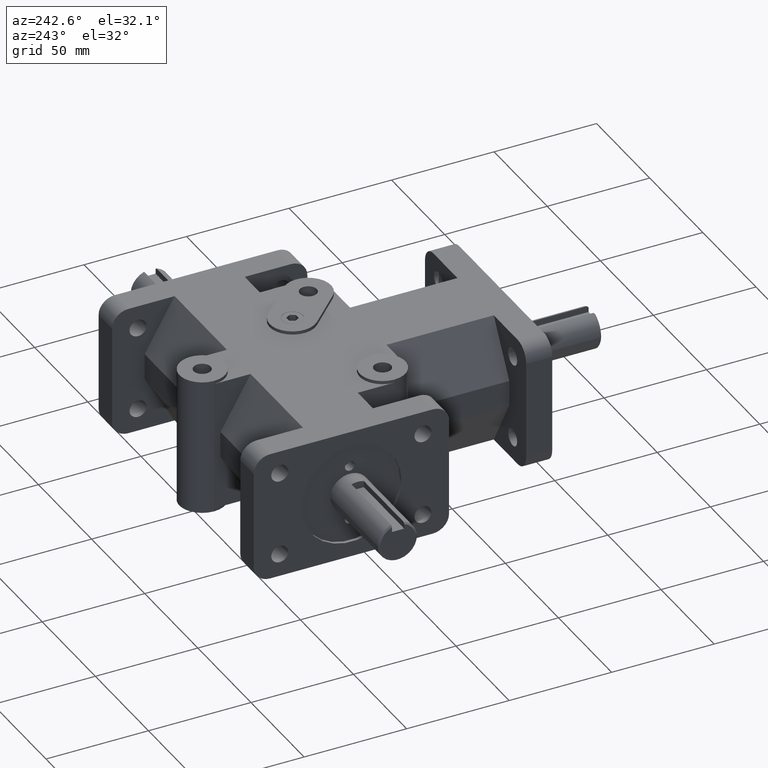
[diagram: clean part render]
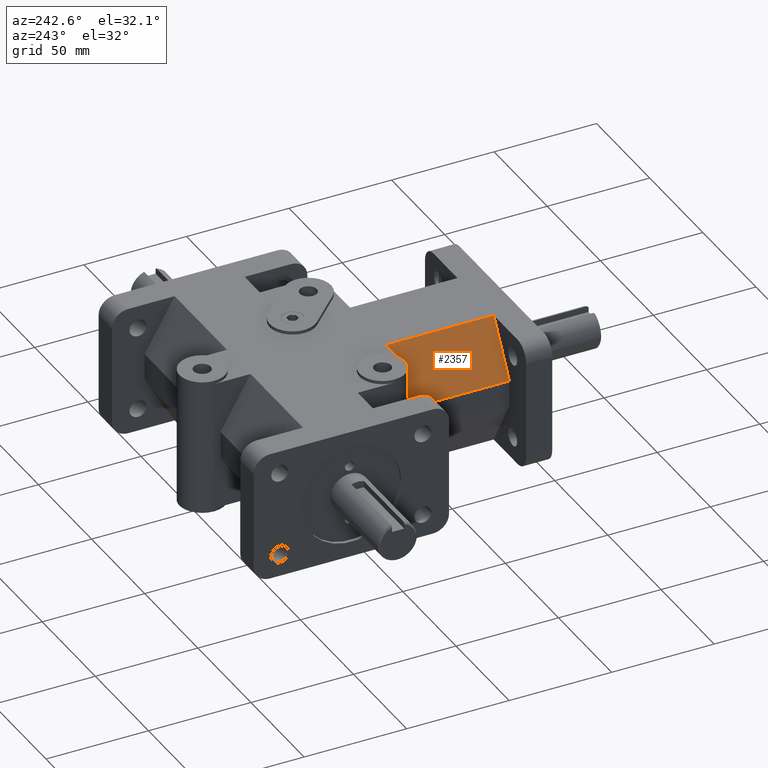
[diagram: same view with one face highlighted and labeled with its STEP entity id]
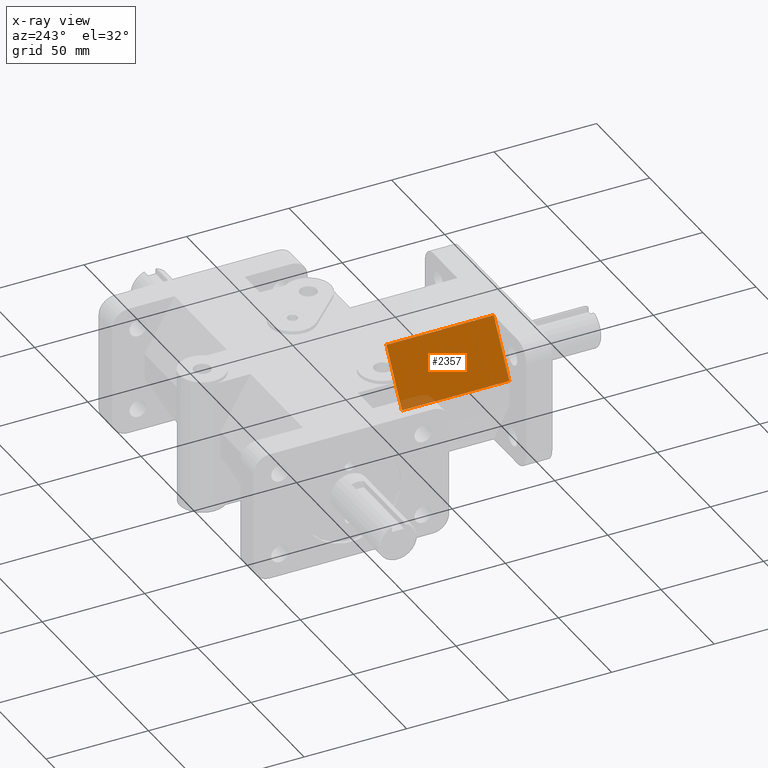
[diagram: x-ray of the same camera — body ghosted, the highlighted face saturated]
A machine part, auxiliary view. The second image highlights one B-rep face of the part: STEP entity #2357.
The next image is the same camera in x-ray: the body ghosted, the highlighted face saturated — about 4% of this face is hidden behind the body in this view.
In plain terms, the highlighted planar face has unit normal (-0.866, 0, 0.5).
Its self-contained STEP definition (entity closure, byte-faithful):
#111=PLANE('',#2606);
#238=FACE_OUTER_BOUND('',#395,.T.);
#395=EDGE_LOOP('',(#2019,#2020,#2021,#2022));
#566=LINE('',#3748,#788);
#626=LINE('',#3937,#848);
#627=LINE('',#3939,#849);
#628=LINE('',#3940,#850);
#788=VECTOR('',#3011,1.);
#848=VECTOR('',#3213,1.);
#849=VECTOR('',#3214,1.);
#850=VECTOR('',#3215,1.);
#1150=VERTEX_POINT('',#3745);
#1151=VERTEX_POINT('',#3747);
#1209=VERTEX_POINT('',#3936);
#1210=VERTEX_POINT('',#3938);
#1416=EDGE_CURVE('',#1151,#1150,#566,.T.);
#1509=EDGE_CURVE('',#1209,#1151,#626,.F.);
#1510=EDGE_CURVE('',#1150,#1210,#627,.F.);
#1511=EDGE_CURVE('',#1210,#1209,#628,.T.);
#2019=ORIENTED_EDGE('',*,*,#1509,.T.);
#2020=ORIENTED_EDGE('',*,*,#1416,.T.);
#2021=ORIENTED_EDGE('',*,*,#1510,.T.);
#2022=ORIENTED_EDGE('',*,*,#1511,.T.);
#2357=ADVANCED_FACE('',(#238),#111,.T.);
#2606=AXIS2_PLACEMENT_3D('',#3935,#3211,#3212);
#3011=DIRECTION('',(0.,1.,0.));
#3211=DIRECTION('center_axis',(-0.866025504730542,0.,0.499999825156179));
#3212=DIRECTION('ref_axis',(0.,1.,0.));
#3213=DIRECTION('',(-0.499999825156179,0.,-0.866025504730542));
#3214=DIRECTION('',(0.499999825156179,0.,0.866025504730542));
#3215=DIRECTION('',(0.,-1.,0.));
#3745=CARTESIAN_POINT('',(-17.08531,65.0875,31.75));
#3747=CARTESIAN_POINT('',(-17.08531,12.7,31.75));
#3748=CARTESIAN_POINT('',(-17.08531,73.9437028726981,31.75));
#3935=CARTESIAN_POINT('Origin',(-24.417655,73.9437028726981,19.05));
#3936=CARTESIAN_POINT('',(-31.75,12.7,6.35));
#3937=CARTESIAN_POINT('',(-29.4586425080037,12.7,10.318749444871));
#3938=CARTESIAN_POINT('',(-31.75,65.0875,6.35));
#3939=CARTESIAN_POINT('',(-29.8555172304392,65.0875,9.63134194086908));
#3940=CARTESIAN_POINT('',(-31.75,73.9437028726981,6.35));